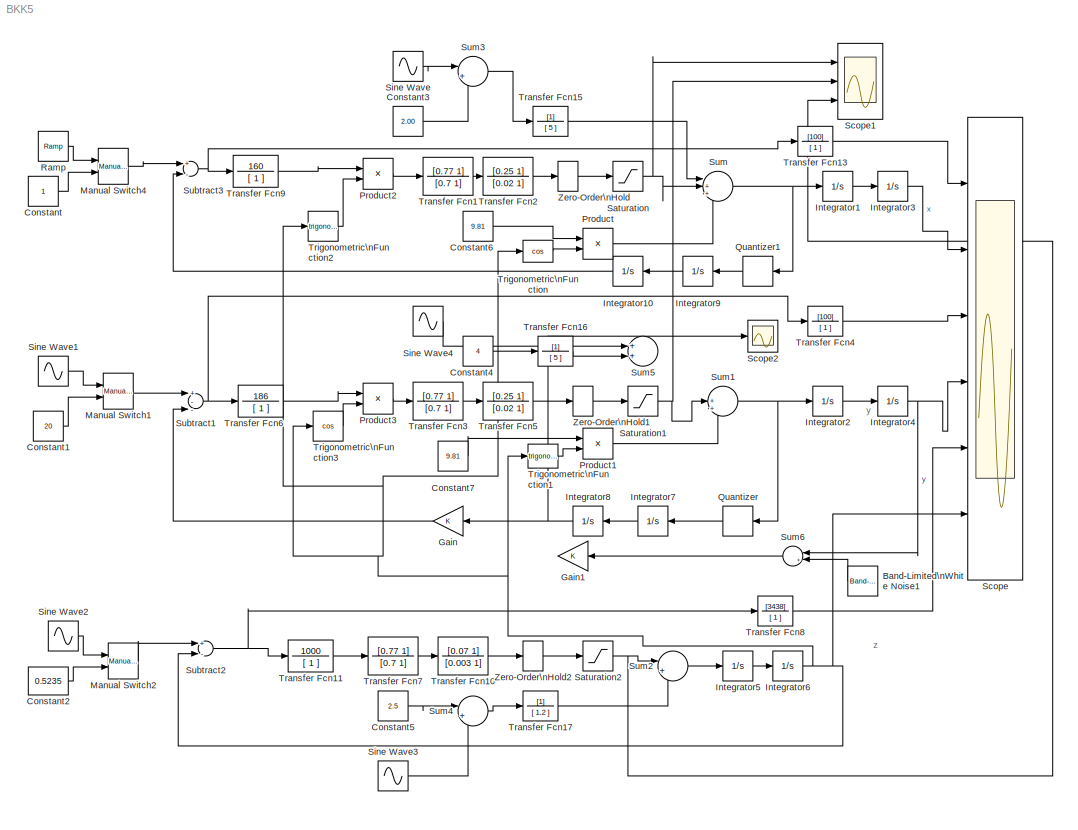
MODEL BKK5
KIND model
BLOCK [Reference] Band-Limited\nWhite Noise1  REF=simulink/Sources/Band-Limited\nWhite Noise
  Cov = [0.0001]
  FunctionWithSeparateData = off
  Ports = [0, 1]
  RTWMemSecDataConstants = Inherit from model
  RTWMemSecDataInternal = Inherit from model
  RTWMemSecDataParameters = Inherit from model
  RTWMemSecFuncExecute = Inherit from model
  RTWMemSecFuncInitTerm = Inherit from model
  ShowPortLabels = FromPortIcon
  SourceBlock = simulink/Sources/Band-Limited\nWhite Noise
  SourceType = Band-Limited White Noise.
  SystemSampleTime = -1
  Ts = 1/1000
  VectorParams1D = on
  seed = [23341]
BLOCK [Constant] Constant
BLOCK [Constant] Constant1
  Value = 20
BLOCK [Constant] Constant2
  Value = 0.5235
BLOCK [Constant] Constant3
  Value = 2.00
BLOCK [Constant] Constant4
  Value = 4
BLOCK [Constant] Constant5
  Value = 2.5
BLOCK [Constant] Constant6
  Value = 9.81
BLOCK [Constant] Constant7
  Value = 9.81
BLOCK [Gain] Gain
  OutDataType = fixdt(1, 16)
  OutDataTypeMode = Inherit via internal rule
  OutDataTypeStr = Inherit: Inherit via internal rule
  OutScaling = 2^0
  ParamDataTypeStr = Inherit: Inherit via internal rule
  ParameterDataType = fixdt(1, 16)
  ParameterDataTypeMode = Inherit via internal rule
  ParameterScaling = 2^0
  SaturateOnIntegerOverflow = off
BLOCK [Gain] Gain1
  OutDataType = fixdt(1, 16)
  OutDataTypeMode = Inherit via internal rule
  OutDataTypeStr = Inherit: Inherit via internal rule
  OutScaling = 2^0
  ParamDataTypeStr = Inherit: Inherit via internal rule
  ParameterDataType = fixdt(1, 16)
  ParameterDataTypeMode = Inherit via internal rule
  ParameterScaling = 2^0
  SaturateOnIntegerOverflow = off
BLOCK [Integrator] Integrator1
  Ports = [1, 1]
BLOCK [Integrator] Integrator10
  Ports = [1, 1]
BLOCK [Integrator] Integrator2
  Ports = [1, 1]
BLOCK [Integrator] Integrator3
  Ports = [1, 1]
BLOCK [Integrator] Integrator4
  Ports = [1, 1]
BLOCK [Integrator] Integrator5
  Ports = [1, 1]
BLOCK [Integrator] Integrator6
  Ports = [1, 1]
BLOCK [Integrator] Integrator7
  Ports = [1, 1]
BLOCK [Integrator] Integrator8
  Ports = [1, 1]
BLOCK [Integrator] Integrator9
  Ports = [1, 1]
BLOCK [Reference] Manual Switch1  REF=simulink/Signal\nRouting/Manual Switch
  FunctionWithSeparateData = off
  Ports = [2, 1]
  RTWMemSecDataConstants = Inherit from model
  RTWMemSecDataInternal = Inherit from model
  RTWMemSecDataParameters = Inherit from model
  RTWMemSecFuncExecute = Inherit from model
  RTWMemSecFuncInitTerm = Inherit from model
  ShowPortLabels = FromPortIcon
  SourceBlock = simulink/Signal\nRouting/Manual Switch
  SourceType = Manual Switch
  SystemSampleTime = -1
  action = 0
  sw = 0
  varsize = off
BLOCK [Reference] Manual Switch2  REF=simulink/Signal\nRouting/Manual Switch
  FunctionWithSeparateData = off
  Ports = [2, 1]
  RTWMemSecDataConstants = Inherit from model
  RTWMemSecDataInternal = Inherit from model
  RTWMemSecDataParameters = Inherit from model
  RTWMemSecFuncExecute = Inherit from model
  RTWMemSecFuncInitTerm = Inherit from model
  ShowPortLabels = FromPortIcon
  SourceBlock = simulink/Signal\nRouting/Manual Switch
  SourceType = Manual Switch
  SystemSampleTime = -1
  action = 0
  sw = 0
  varsize = off
BLOCK [Reference] Manual Switch4  REF=simulink/Signal\nRouting/Manual Switch
  FunctionWithSeparateData = off
  Ports = [2, 1]
  RTWMemSecDataConstants = Inherit from model
  RTWMemSecDataInternal = Inherit from model
  RTWMemSecDataParameters = Inherit from model
  RTWMemSecFuncExecute = Inherit from model
  RTWMemSecFuncInitTerm = Inherit from model
  ShowPortLabels = FromPortIcon
  SourceBlock = simulink/Signal\nRouting/Manual Switch
  SourceType = Manual Switch
  SystemSampleTime = -1
  action = 0
  sw = 0
  varsize = off
BLOCK [Product] Product
  InputSameDT = off
  OutDataTypeMode = Inherit via internal rule
  OutDataTypeStr = Inherit: Inherit via internal rule
  Ports = [2, 1]
  SaturateOnIntegerOverflow = off
BLOCK [Product] Product1
  InputSameDT = off
  OutDataTypeMode = Inherit via internal rule
  OutDataTypeStr = Inherit: Inherit via internal rule
  Ports = [2, 1]
  SaturateOnIntegerOverflow = off
BLOCK [Product] Product2
  InputSameDT = off
  OutDataTypeMode = Inherit via internal rule
  OutDataTypeStr = Inherit: Inherit via internal rule
  Ports = [2, 1]
  SaturateOnIntegerOverflow = off
BLOCK [Product] Product3
  InputSameDT = off
  OutDataTypeMode = Inherit via internal rule
  OutDataTypeStr = Inherit: Inherit via internal rule
  Ports = [2, 1]
  SaturateOnIntegerOverflow = off
BLOCK [Quantizer] Quantizer
  QuantizationInterval = 0.00390625
  SampleTime = 1/200
BLOCK [Quantizer] Quantizer1
  QuantizationInterval = 0.00390625
  SampleTime = 1/200
BLOCK [Reference] Ramp  REF=simulink/Sources/Ramp
  FunctionWithSeparateData = off
  Ports = [0, 1]
  RTWMemSecDataConstants = Inherit from model
  RTWMemSecDataInternal = Inherit from model
  RTWMemSecDataParameters = Inherit from model
  RTWMemSecFuncExecute = Inherit from model
  RTWMemSecFuncInitTerm = Inherit from model
  ShowPortLabels = FromPortIcon
  SourceBlock = simulink/Sources/Ramp
  SourceType = Ramp
  SystemSampleTime = -1
  VectorParams1D = on
  X0 = 0
  slope = 1
  start = 0
BLOCK [Saturate] Saturation
  LowerLimit = -10
  UpperLimit = 10
BLOCK [Saturate] Saturation1
  LowerLimit = -17.2
  UpperLimit = 17.2
BLOCK [Saturate] Saturation2
  LowerLimit = -20
  UpperLimit = 20
BLOCK [Scope] Scope
  DataFormat = StructureWithTime
  Floating = off
  MaxDataPoints = 5000000
  NumInputPorts = 6
  Ports = [6]
  SampleTime = 0
  YMax = 5~60~2000~25~2000~0.7
  YMin = -45~0~-500~0~-750~0
  ZoomMode = yonly
BLOCK [Scope] Scope1
  DataFormat = StructureWithTime
  Floating = off
  MaxDataPoints = 5000000
  NumInputPorts = 3
  Ports = [3]
  SampleTime = 0
  SaveName = ScopeData1
  YMax = 5~5~5
  YMin = -5~-5~-5
  ZoomMode = yonly
BLOCK [Scope] Scope2
  DataFormat = StructureWithTime
  Floating = off
  MaxDataPoints = 500000
  NumInputPorts = 1
  Ports = [1]
  SampleTime = 0
  SaveName = ScopeData2
  YMax = 4.927
  YMin = 4.916
  ZoomMode = yonly
BLOCK [Sin] Sine Wave
  Amplitude = 0.4
  Bias = 0
  Frequency = 0.314
  Offset = 0
  Phase = 0
  Ports = [0, 1]
  SampleTime = 0
  Samples = 10
BLOCK [Sin] Sine Wave1
  Amplitude = 0.1
  Bias = 0
  Frequency = 0.628
  Offset = 0
  Phase = 0
  Ports = [0, 1]
  SampleTime = 0
  Samples = 10
BLOCK [Sin] Sine Wave2
  Amplitude = 0.1
  Bias = 0
  Frequency = 0.628
  Offset = 0
  Phase = 0
  Ports = [0, 1]
  SampleTime = 0
  Samples = 10
BLOCK [Sin] Sine Wave3
  Amplitude = 0.5
  Bias = 0
  Frequency = 6.28
  Offset = 0
  Phase = 1.57
  Ports = [0, 1]
  SampleTime = 0
  Samples = 10
BLOCK [Sin] Sine Wave4
  Amplitude = 0.3
  Bias = 0
  Frequency = 0.3
  Offset = 0
  Phase = 1.57
  Ports = [0, 1]
  SampleTime = 0
  Samples = 10
BLOCK [Sum] Subtract1
  InputSameDT = off
  Inputs = +--
  OutDataTypeMode = Inherit via internal rule
  OutDataTypeStr = Inherit: Inherit via internal rule
  Ports = [3, 1]
  SaturateOnIntegerOverflow = off
BLOCK [Sum] Subtract2
  InputSameDT = off
  Inputs = +-
  OutDataTypeMode = Inherit via internal rule
  OutDataTypeStr = Inherit: Inherit via internal rule
  Ports = [2, 1]
  SaturateOnIntegerOverflow = off
BLOCK [Sum] Subtract3
  InputSameDT = off
  Inputs = +-
  OutDataTypeMode = Inherit via internal rule
  OutDataTypeStr = Inherit: Inherit via internal rule
  Ports = [2, 1]
  SaturateOnIntegerOverflow = off
BLOCK [Sum] Sum
  IconShape = round
  InputSameDT = off
  Inputs = |+++
  OutDataTypeMode = Inherit via internal rule
  OutDataTypeStr = Inherit: Inherit via internal rule
  Ports = [3, 1]
  SaturateOnIntegerOverflow = off
BLOCK [Sum] Sum1
  IconShape = round
  InputSameDT = off
  Inputs = |++-
  OutDataTypeMode = Inherit via internal rule
  OutDataTypeStr = Inherit: Inherit via internal rule
  Ports = [3, 1]
  SaturateOnIntegerOverflow = off
BLOCK [Sum] Sum2
  IconShape = round
  InputSameDT = off
  Inputs = |++
  OutDataTypeMode = Inherit via internal rule
  OutDataTypeStr = Inherit: Inherit via internal rule
  Ports = [2, 1]
  SaturateOnIntegerOverflow = off
BLOCK [Sum] Sum3
  IconShape = round
  InputSameDT = off
  Inputs = |++
  OutDataTypeMode = Inherit via internal rule
  OutDataTypeStr = Inherit: Inherit via internal rule
  Ports = [2, 1]
  SaturateOnIntegerOverflow = off
BLOCK [Sum] Sum4
  IconShape = round
  InputSameDT = off
  Inputs = |++
  OutDataTypeMode = Inherit via internal rule
  OutDataTypeStr = Inherit: Inherit via internal rule
  Ports = [2, 1]
  SaturateOnIntegerOverflow = off
BLOCK [Sum] Sum5
  IconShape = round
  InputSameDT = off
  Inputs = ++|
  OutDataTypeMode = Inherit via internal rule
  OutDataTypeStr = Inherit: Inherit via internal rule
  Ports = [2, 1]
  SaturateOnIntegerOverflow = off
BLOCK [Sum] Sum6
  IconShape = round
  InputSameDT = off
  Inputs = |++
  OutDataType = fixdt(1, 16)
  OutDataTypeMode = Inherit via internal rule
  OutDataTypeStr = Inherit: Inherit via internal rule
  OutScaling = 2^0
  Ports = [2, 1]
  SaturateOnIntegerOverflow = off
BLOCK [TransferFcn] Transfer Fcn1
  Denominator = [0.7  1]
  Numerator = [0.77 1]
BLOCK [TransferFcn] Transfer Fcn10
  Denominator = [0.003  1]
  Numerator = [0.07 1]
BLOCK [TransferFcn] Transfer Fcn11
  Denominator = [ 1 ]
  Numerator = 1000
BLOCK [TransferFcn] Transfer Fcn13
  Denominator = [ 1 ]
  Numerator = [100]
BLOCK [TransferFcn] Transfer Fcn15
  Denominator = [ 5 ]
BLOCK [TransferFcn] Transfer Fcn16
  Denominator = [ 5 ]
BLOCK [TransferFcn] Transfer Fcn17
  Denominator = [ 1.2 ]
BLOCK [TransferFcn] Transfer Fcn2
  Denominator = [0.02  1]
  Numerator = [0.25 1]
BLOCK [TransferFcn] Transfer Fcn3
  Denominator = [0.7  1]
  Numerator = [0.77 1]
BLOCK [TransferFcn] Transfer Fcn4
  Denominator = [ 1 ]
  Numerator = [100]
BLOCK [TransferFcn] Transfer Fcn5
  Denominator = [0.02  1]
  Numerator = [0.25 1]
BLOCK [TransferFcn] Transfer Fcn6
  Denominator = [ 1 ]
  Numerator = 186
BLOCK [TransferFcn] Transfer Fcn7
  Denominator = [0.7  1]
  Numerator = [0.77 1]
BLOCK [TransferFcn] Transfer Fcn8
  Denominator = [ 1 ]
  Numerator = [3438]
BLOCK [TransferFcn] Transfer Fcn9
  Denominator = [ 1 ]
  Numerator = 160
BLOCK [Trigonometry] Trigonometric\nFunction
  Operator = cos
  Ports = [1, 1]
BLOCK [Trigonometry] Trigonometric\nFunction1
  Ports = [1, 1]
BLOCK [Trigonometry] Trigonometric\nFunction2
  Ports = [1, 1]
BLOCK [Trigonometry] Trigonometric\nFunction3
  Operator = cos
  Ports = [1, 1]
BLOCK [ZeroOrderHold] Zero-Order\nHold
  SampleTime = 0.02
BLOCK [ZeroOrderHold] Zero-Order\nHold1
  SampleTime = 1/200
BLOCK [ZeroOrderHold] Zero-Order\nHold2
  SampleTime = 1/50
ANNOTATION (root): y
ANNOTATION (root): z
LINE Band-Limited\nWhite Noise1:1 -> Sum6:2
LINE Constant1:1 -> Manual Switch1:2
LINE Constant2:1 -> Manual Switch2:2
LINE Constant3:1 -> Sum3:2
LINE Constant4:1 -> Transfer Fcn16:1
LINE Constant5:1 -> Sum4:1
LINE Constant6:1 -> Product:1
LINE Constant7:1 -> Product1:1
LINE Constant:1 -> Manual Switch4:2
LINE Gain:1 -> Subtract1:3
LINE Integrator10:1 -> Subtract3:2
LINE Integrator1:1 -> Integrator3:1
LINE Integrator2:1 -> Integrator4:1
LINE Integrator3:1 -> Scope:2
NET Integrator4:1 -> Scope:4, Sum6:1
LINE Integrator5:1 -> Integrator6:1
NET Integrator6:1 -> Scope:6, Subtract2:2, Trigonometric\nFunction1:1, Trigonometric\nFunction2:1, Trigonometric\nFunction3:1, Trigonometric\nFunction:1
LINE Integrator7:1 -> Integrator8:1
NET Integrator8:1 -> Gain:1, Scope2:1
LINE Integrator9:1 -> Integrator10:1
LINE Manual Switch1:1 -> Subtract1:1
LINE Manual Switch2:1 -> Subtract2:1
LINE Manual Switch4:1 -> Subtract3:1
LINE Product1:1 -> Sum1:3
LINE Product2:1 -> Transfer Fcn1:1
LINE Product3:1 -> Transfer Fcn3:1
LINE Product:1 -> Sum:3
LINE Quantizer1:1 -> Integrator9:1
LINE Quantizer:1 -> Integrator7:1
LINE Ramp:1 -> Manual Switch4:1
NET Saturation1:1 -> Scope1:2, Sum1:2
NET Saturation2:1 -> Scope1:3, Sum2:1
NET Saturation:1 -> Scope1:1, Sum:2
LINE Sine Wave1:1 -> Manual Switch1:1
LINE Sine Wave2:1 -> Manual Switch2:1
LINE Sine Wave3:1 -> Sum4:2
LINE Sine Wave4:1 -> Sum5:1
LINE Sine Wave:1 -> Sum3:1
NET Subtract1:1 -> Transfer Fcn4:1, Transfer Fcn6:1
NET Subtract2:1 -> Transfer Fcn11:1, Transfer Fcn8:1
NET Subtract3:1 -> Transfer Fcn13:1, Transfer Fcn9:1
NET Sum1:1 -> Integrator2:1, Quantizer:1
LINE Sum2:1 -> Integrator5:1
LINE Sum3:1 -> Transfer Fcn15:1
LINE Sum4:1 -> Transfer Fcn17:1
LINE Sum6:1 -> Gain1:1
NET Sum:1 -> Integrator1:1, Quantizer1:1
LINE Transfer Fcn10:1 -> Zero-Order\nHold2:1
LINE Transfer Fcn11:1 -> Transfer Fcn7:1
LINE Transfer Fcn13:1 -> Scope:1
LINE Transfer Fcn15:1 -> Sum:1
LINE Transfer Fcn16:1 -> Sum5:2
LINE Transfer Fcn17:1 -> Sum2:2
LINE Transfer Fcn1:1 -> Transfer Fcn2:1
LINE Transfer Fcn2:1 -> Zero-Order\nHold:1
LINE Transfer Fcn3:1 -> Transfer Fcn5:1
LINE Transfer Fcn4:1 -> Scope:3
LINE Transfer Fcn5:1 -> Zero-Order\nHold1:1
LINE Transfer Fcn6:1 -> Product3:1
LINE Transfer Fcn7:1 -> Transfer Fcn10:1
LINE Transfer Fcn8:1 -> Scope:5
LINE Transfer Fcn9:1 -> Product2:1
LINE Trigonometric\nFunction1:1 -> Product1:2
LINE Trigonometric\nFunction2:1 -> Product2:2
LINE Trigonometric\nFunction3:1 -> Product3:2
LINE Trigonometric\nFunction:1 -> Product:2
LINE Zero-Order\nHold1:1 -> Saturation1:1
LINE Zero-Order\nHold2:1 -> Saturation2:1
LINE Zero-Order\nHold:1 -> Saturation:1
note: NET lines group one-source signal fan-out (src -> all destinations, sorted); 1:1 wires keep LINE
